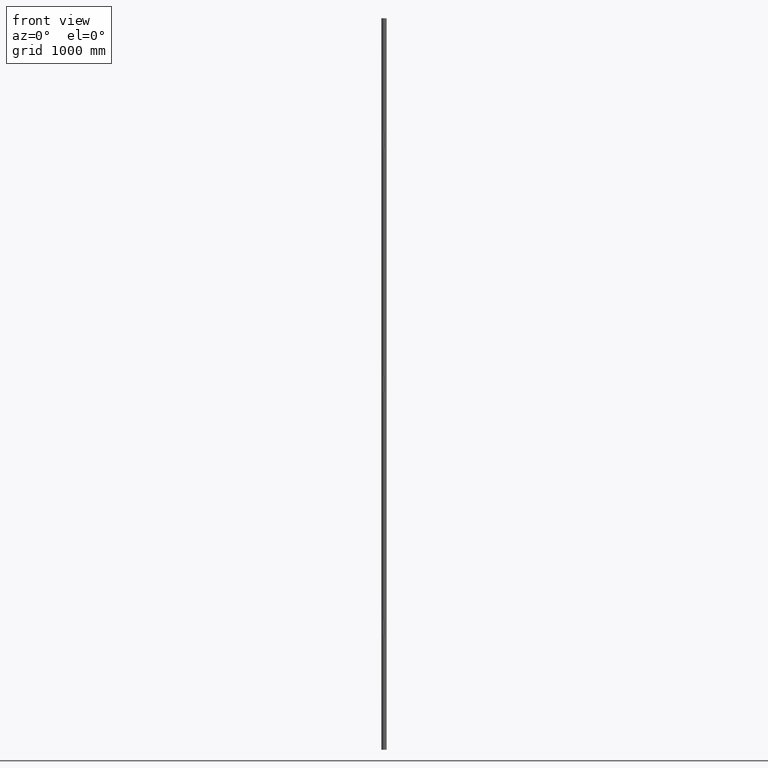
[diagram: clean part render]
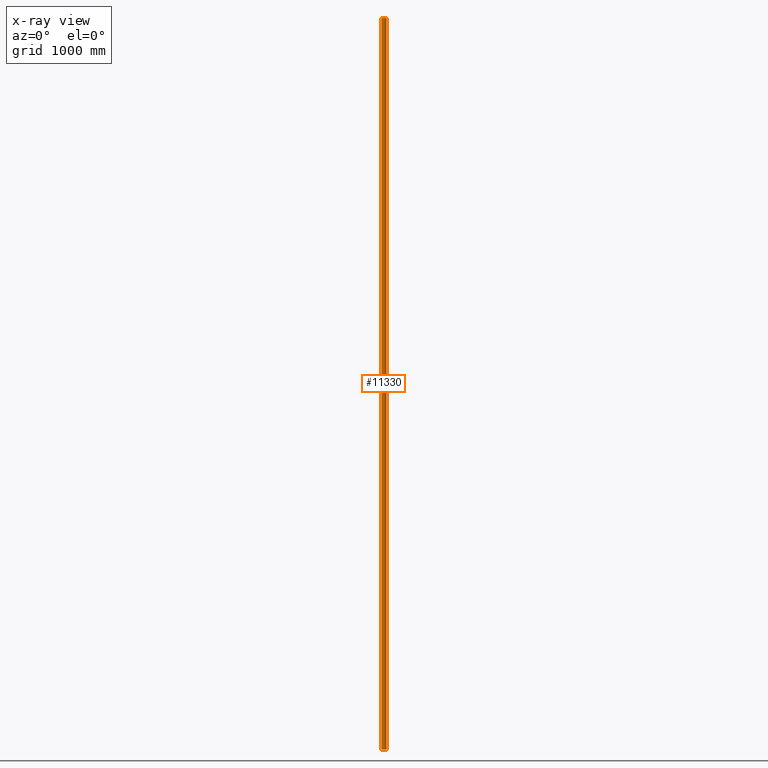
[diagram: x-ray — body ghosted, one internal face saturated and labeled with its STEP entity id]
A machine part, front view, then the same camera in x-ray: the body is ghosted and one INTERNAL B-rep face — a face not visible from any outside direction — is saturated and labeled: STEP entity #11330.
In plain terms, the highlighted cylindrical surface (edge-blend (fillet) strip) has radius 21.2 mm, axis along (-0, -0, -1).
Its self-contained STEP definition (entity closure, byte-faithful):
#88 = DIRECTION ( 'NONE',  ( -0.000000000000000000, -0.000000000000000000, -1.000000000000000000 ) ) ;
#439 = LINE ( 'NONE', #16498, #1753 ) ;
#577 = EDGE_LOOP ( 'NONE', ( #11818, #9452, #7510, #6680 ) ) ;
#809 = CARTESIAN_POINT ( 'NONE',  ( 0.000000000000000000, 0.000000000000000000, 3000.000000000000000 ) ) ;
#1753 = VECTOR ( 'NONE', #13863, 1000.000000000000000 ) ;
#2100 = AXIS2_PLACEMENT_3D ( 'NONE', #17753, #6399, #14992 ) ;
#2105 = EDGE_CURVE ( 'NONE', #15666, #8434, #439, .T. ) ;
#2588 = EDGE_CURVE ( 'NONE', #8434, #7741, #4205, .T. ) ;
#3338 = CARTESIAN_POINT ( 'NONE',  ( 21.19999999999999929, 2.596251214192388770E-15, 3000.000000000000000 ) ) ;
#3505 = LINE ( 'NONE', #13927, #17999 ) ;
#4205 = CIRCLE ( 'NONE', #4531, 21.19999999999999929 ) ;
#4531 = AXIS2_PLACEMENT_3D ( 'NONE', #10728, #16380, #12138 ) ;
#6399 = DIRECTION ( 'NONE',  ( 0.000000000000000000, 0.000000000000000000, 1.000000000000000000 ) ) ;
#6680 = ORIENTED_EDGE ( 'NONE', *, *, #17629, .F. ) ;
#7510 = ORIENTED_EDGE ( 'NONE', *, *, #2588, .T. ) ;
#7741 = VERTEX_POINT ( 'NONE', #16379 ) ;
#7772 = DIRECTION ( 'NONE',  ( -1.000000000000000000, 0.000000000000000000, 0.000000000000000000 ) ) ;
#8434 = VERTEX_POINT ( 'NONE', #9162 ) ;
#8988 = CARTESIAN_POINT ( 'NONE',  ( -21.19999999999999929, 0.000000000000000000, 3000.000000000000000 ) ) ;
#9052 = CIRCLE ( 'NONE', #2100, 21.19999999999999929 ) ;
#9162 = CARTESIAN_POINT ( 'NONE',  ( 21.19999999999999929, 2.596251214192388770E-15, -3000.000000000000000 ) ) ;
#9236 = EDGE_CURVE ( 'NONE', #15666, #14509, #9052, .T. ) ;
#9452 = ORIENTED_EDGE ( 'NONE', *, *, #2105, .T. ) ;
#9738 = FACE_OUTER_BOUND ( 'NONE', #577, .T. ) ;
#10609 = AXIS2_PLACEMENT_3D ( 'NONE', #809, #14781, #7772 ) ;
#10728 = CARTESIAN_POINT ( 'NONE',  ( 0.000000000000000000, 0.000000000000000000, -3000.000000000000000 ) ) ;
#11330 = ADVANCED_FACE ( 'NONE', ( #9738 ), #15865, .T. ) ;
#11818 = ORIENTED_EDGE ( 'NONE', *, *, #9236, .F. ) ;
#12138 = DIRECTION ( 'NONE',  ( 1.000000000000000000, 0.000000000000000000, 0.000000000000000000 ) ) ;
#13863 = DIRECTION ( 'NONE',  ( -0.000000000000000000, -0.000000000000000000, -1.000000000000000000 ) ) ;
#13927 = CARTESIAN_POINT ( 'NONE',  ( -21.19999999999999929, 0.000000000000000000, 3000.000000000000000 ) ) ;
#14509 = VERTEX_POINT ( 'NONE', #8988 ) ;
#14781 = DIRECTION ( 'NONE',  ( -0.000000000000000000, -0.000000000000000000, -1.000000000000000000 ) ) ;
#14992 = DIRECTION ( 'NONE',  ( 1.000000000000000000, 0.000000000000000000, 0.000000000000000000 ) ) ;
#15666 = VERTEX_POINT ( 'NONE', #3338 ) ;
#15865 = CYLINDRICAL_SURFACE ( 'NONE', #10609, 21.19999999999999929 ) ;
#16379 = CARTESIAN_POINT ( 'NONE',  ( -21.19999999999999929, 0.000000000000000000, -3000.000000000000000 ) ) ;
#16380 = DIRECTION ( 'NONE',  ( 0.000000000000000000, 0.000000000000000000, 1.000000000000000000 ) ) ;
#16498 = CARTESIAN_POINT ( 'NONE',  ( 21.19999999999999929, 2.596251214192388770E-15, 3000.000000000000000 ) ) ;
#17629 = EDGE_CURVE ( 'NONE', #14509, #7741, #3505, .T. ) ;
#17753 = CARTESIAN_POINT ( 'NONE',  ( 0.000000000000000000, 0.000000000000000000, 3000.000000000000000 ) ) ;
#17999 = VECTOR ( 'NONE', #88, 1000.000000000000000 ) ;